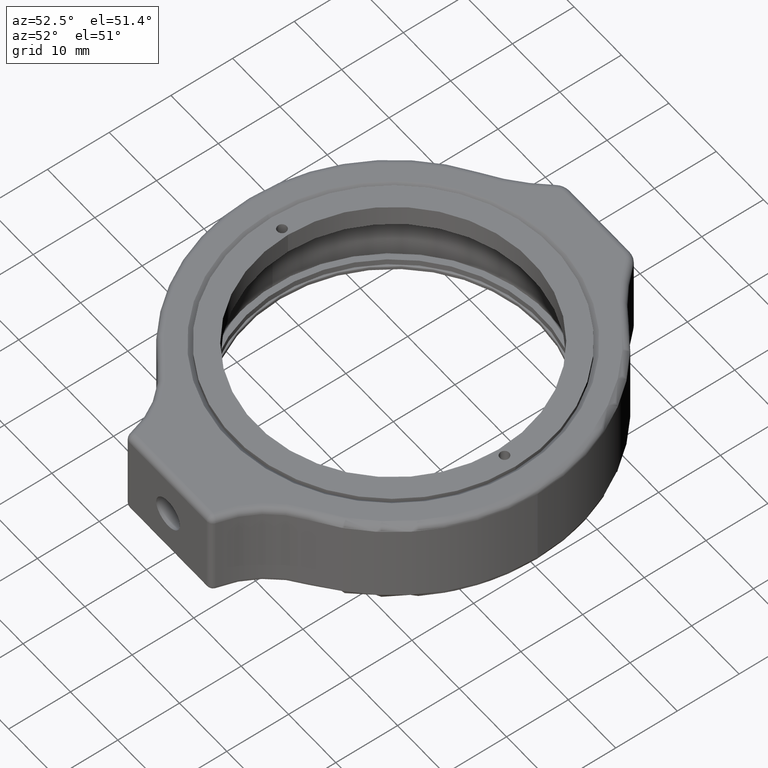
[diagram: clean part render]
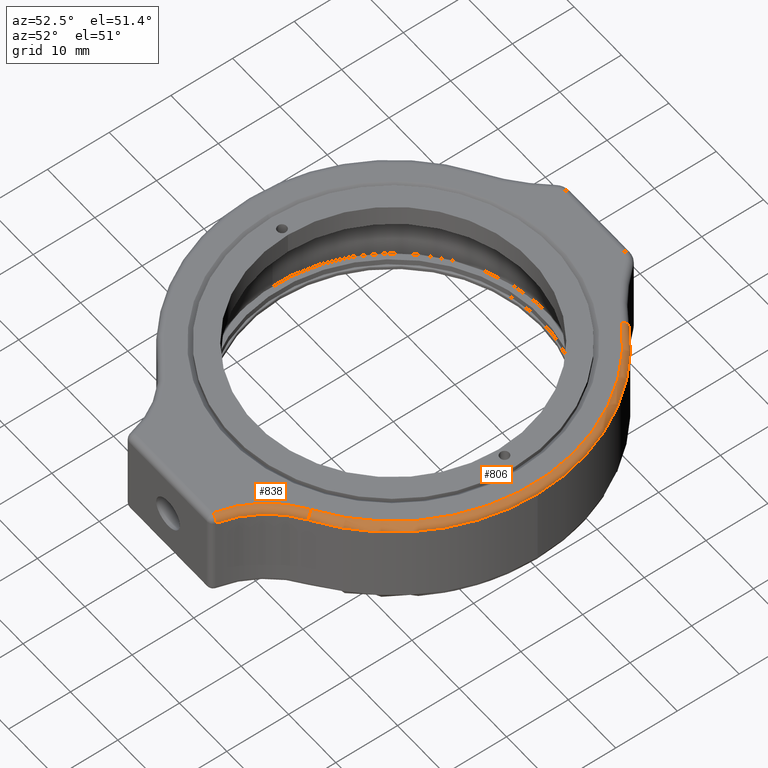
[diagram: same view with one multi-face feature highlighted, each face labeled with its STEP entity id]
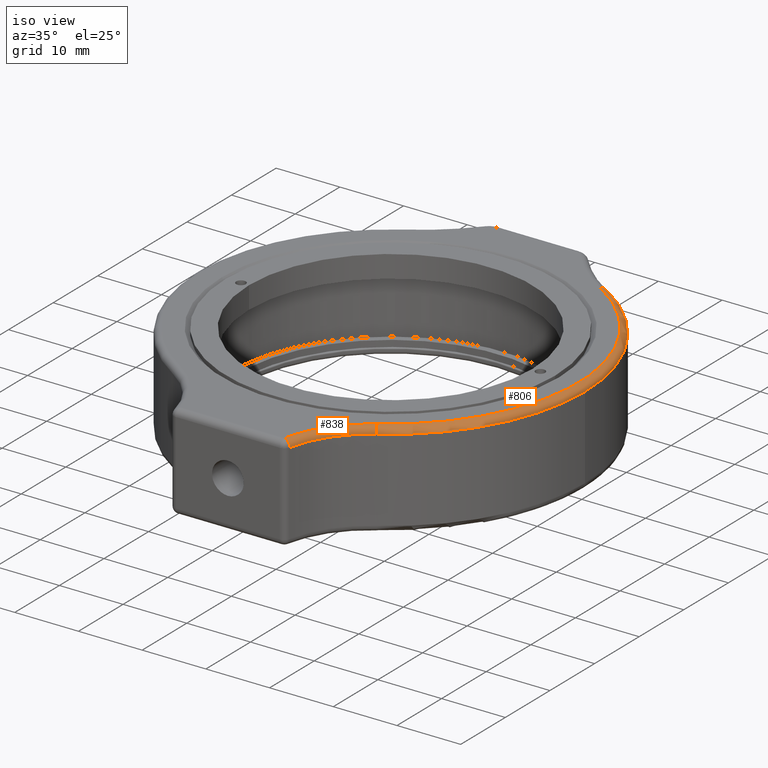
[diagram: same view with one multi-face feature highlighted, each face labeled with its STEP entity id]
A machine part, auxiliary view. The highlighted faces form ONE feature: a constant-radius fillet chain: 2 tangent blend faces with common blend radius 1 mm. The faces share edges in the B-rep.
A second angle (iso view) of the same feature is appended — it is thin or edge-on in the first view.
Their STEP definitions:
[1] entity #806 (Torus):
#46 = ORIENTED_EDGE ( 'NONE', *, *, #1982, .F. ) ;
#233 = CARTESIAN_POINT ( 'NONE',  ( 15.44927815531206500, -25.13105259394833600, -1.000000000000000000 ) ) ;
#235 = EDGE_CURVE ( 'NONE', #1274, #988, #1292, .T. ) ;
#253 = VERTEX_POINT ( 'NONE', #2094 ) ;
#254 = CARTESIAN_POINT ( 'NONE',  ( 0.0000000000000000000, 0.0000000000000000000, -1.000000000000000900 ) ) ;
#292 = FACE_OUTER_BOUND ( 'NONE', #2047, .T. ) ;
#358 = CARTESIAN_POINT ( 'NONE',  ( 30.50000000000000000, -1.693090112553364000E-014, -1.000000000000000900 ) ) ;
#411 = DIRECTION ( 'NONE',  ( -1.000000000000000000, 5.551115123125783700E-016, 0.0000000000000000000 ) ) ;
#434 = DIRECTION ( 'NONE',  ( 0.0000000000000000000, 0.0000000000000000000, -1.000000000000000000 ) ) ;
#450 = CIRCLE ( 'NONE', #1039, 30.50000000000000000 ) ;
#507 = CIRCLE ( 'NONE', #2208, 30.50000000000000000 ) ;
#509 = VERTEX_POINT ( 'NONE', #358 ) ;
#569 = DIRECTION ( 'NONE',  ( -0.8559209928427903300, 0.5171066176438011700, 0.0000000000000000000 ) ) ;
#756 = CARTESIAN_POINT ( 'NONE',  ( 0.0000000000000000000, 0.0000000000000000000, -1.000000000000000900 ) ) ;
#788 = ORIENTED_EDGE ( 'NONE', *, *, #2058, .F. ) ;
#806 = ADVANCED_FACE ( 'NONE', ( #292 ), #1275, .T. ) ;
#841 = VERTEX_POINT ( 'NONE', #2154 ) ;
#886 = ORIENTED_EDGE ( 'NONE', *, *, #235, .F. ) ;
#988 = VERTEX_POINT ( 'NONE', #1147 ) ;
#1039 = AXIS2_PLACEMENT_3D ( 'NONE', #254, #434, #411 ) ;
#1147 = CARTESIAN_POINT ( 'NONE',  ( 15.25464522049212100, 25.24966928886230400, 0.0000000000000000000 ) ) ;
#1206 = CARTESIAN_POINT ( 'NONE',  ( 0.0000000000000000000, 0.0000000000000000000, -1.000000000000000900 ) ) ;
#1252 = CARTESIAN_POINT ( 'NONE',  ( 0.0000000000000000000, 0.0000000000000000000, 0.0000000000000000000 ) ) ;
#1274 = VERTEX_POINT ( 'NONE', #1895 ) ;
#1275 = TOROIDAL_SURFACE ( 'NONE', #1642, 29.50000000000000000, 1.000000000000000000 ) ;
#1292 = CIRCLE ( 'NONE', #2143, 29.50000000000000000 ) ;
#1363 = EDGE_CURVE ( 'NONE', #509, #841, #450, .T. ) ;
#1372 = EDGE_CURVE ( 'NONE', #1274, #841, #1391, .T. ) ;
#1391 = CIRCLE ( 'NONE', #1844, 1.000000000000001100 ) ;
#1425 = DIRECTION ( 'NONE',  ( -0.0000000000000000000, -0.0000000000000000000, 1.000000000000000000 ) ) ;
#1427 = DIRECTION ( 'NONE',  ( -1.000000000000000000, 5.551115123125783700E-016, 0.0000000000000000000 ) ) ;
#1535 = CARTESIAN_POINT ( 'NONE',  ( 15.25464522049212100, 25.24966928886230400, -1.000000000000000000 ) ) ;
#1577 = DIRECTION ( 'NONE',  ( -1.000000000000000000, 1.443289932012703500E-015, 0.0000000000000000000 ) ) ;
#1586 = DIRECTION ( 'NONE',  ( 0.8519000879304528000, 0.5237043442478653800, 0.0000000000000000000 ) ) ;
#1610 = DIRECTION ( 'NONE',  ( 0.5237043442478656100, -0.8519000879304528000, 0.0000000000000000000 ) ) ;
#1642 = AXIS2_PLACEMENT_3D ( 'NONE', #756, #1754, #1427 ) ;
#1684 = DIRECTION ( 'NONE',  ( -1.000000000000000000, 5.551115123125783700E-016, 0.0000000000000000000 ) ) ;
#1693 = DIRECTION ( 'NONE',  ( 0.0000000000000000000, 0.0000000000000000000, -1.000000000000000000 ) ) ;
#1754 = DIRECTION ( 'NONE',  ( 0.0000000000000000000, 0.0000000000000000000, -1.000000000000000000 ) ) ;
#1844 = AXIS2_PLACEMENT_3D ( 'NONE', #233, #1586, #1610 ) ;
#1895 = CARTESIAN_POINT ( 'NONE',  ( 15.44927815531207000, -25.13105259394834700, -0.0000000000000000000 ) ) ;
#1982 = EDGE_CURVE ( 'NONE', #988, #253, #2083, .T. ) ;
#2047 = EDGE_LOOP ( 'NONE', ( #2204, #2189, #788, #46, #886 ) ) ;
#2049 = DIRECTION ( 'NONE',  ( 0.5171066176437993900, 0.8559209928427912200, 0.0000000000000000000 ) ) ;
#2058 = EDGE_CURVE ( 'NONE', #253, #509, #507, .T. ) ;
#2083 = CIRCLE ( 'NONE', #2172, 0.9999999999999987800 ) ;
#2094 = CARTESIAN_POINT ( 'NONE',  ( 15.77175183813591800, 26.10559028170507300, -1.000000000000000900 ) ) ;
#2143 = AXIS2_PLACEMENT_3D ( 'NONE', #1252, #1425, #1577 ) ;
#2154 = CARTESIAN_POINT ( 'NONE',  ( 15.97298249955993100, -25.98295268187880700, -1.000000000000000900 ) ) ;
#2172 = AXIS2_PLACEMENT_3D ( 'NONE', #1535, #569, #2049 ) ;
#2189 = ORIENTED_EDGE ( 'NONE', *, *, #1363, .F. ) ;
#2204 = ORIENTED_EDGE ( 'NONE', *, *, #1372, .T. ) ;
#2208 = AXIS2_PLACEMENT_3D ( 'NONE', #1206, #1693, #1684 ) ;
[2] entity #838 (Torus):
#10 = EDGE_CURVE ( 'NONE', #841, #1131, #665, .T. ) ;
#30 = AXIS2_PLACEMENT_3D ( 'NONE', #986, #1644, #802 ) ;
#233 = CARTESIAN_POINT ( 'NONE',  ( 15.44927815531206500, -25.13105259394833600, -1.000000000000000000 ) ) ;
#315 = AXIS2_PLACEMENT_3D ( 'NONE', #2222, #983, #500 ) ;
#447 = ORIENTED_EDGE ( 'NONE', *, *, #10, .F. ) ;
#463 = EDGE_CURVE ( 'NONE', #1286, #1274, #1599, .T. ) ;
#481 = ORIENTED_EDGE ( 'NONE', *, *, #981, .T. ) ;
#492 = DIRECTION ( 'NONE',  ( 0.2038408750522239500, 0.9790040335248592100, 0.0000000000000000000 ) ) ;
#500 = DIRECTION ( 'NONE',  ( -1.000000000000000000, 4.625929269271486900E-016, 0.0000000000000000000 ) ) ;
#665 = CIRCLE ( 'NONE', #315, 14.99999999999999500 ) ;
#698 = CARTESIAN_POINT ( 'NONE',  ( 9.143487160405019400, -35.70384087505222200, -1.000000000000000900 ) ) ;
#802 = DIRECTION ( 'NONE',  ( -1.000000000000000000, 4.336808689942019700E-016, 0.0000000000000000000 ) ) ;
#820 = DIRECTION ( 'NONE',  ( 0.9790040335248596500, -0.2038408750522221500, 0.0000000000000000000 ) ) ;
#838 = ADVANCED_FACE ( 'NONE', ( #1839 ), #889, .T. ) ;
#841 = VERTEX_POINT ( 'NONE', #2154 ) ;
#889 = TOROIDAL_SURFACE ( 'NONE', #1478, 15.99999999999999300, 1.000000000000000000 ) ;
#931 = CARTESIAN_POINT ( 'NONE',  ( 23.82854766327792400, -38.76145400083557000, -1.000000000000000900 ) ) ;
#981 = EDGE_CURVE ( 'NONE', #1286, #1131, #1868, .T. ) ;
#983 = DIRECTION ( 'NONE',  ( -0.0000000000000000000, -0.0000000000000000000, 1.000000000000000000 ) ) ;
#986 = CARTESIAN_POINT ( 'NONE',  ( 23.82854766327792400, -38.76145400083557000, -0.0000000000000000000 ) ) ;
#1131 = VERTEX_POINT ( 'NONE', #698 ) ;
#1274 = VERTEX_POINT ( 'NONE', #1895 ) ;
#1286 = VERTEX_POINT ( 'NONE', #2095 ) ;
#1372 = EDGE_CURVE ( 'NONE', #1274, #841, #1391, .T. ) ;
#1391 = CIRCLE ( 'NONE', #1844, 1.000000000000001100 ) ;
#1478 = AXIS2_PLACEMENT_3D ( 'NONE', #931, #1803, #2147 ) ;
#1574 = ORIENTED_EDGE ( 'NONE', *, *, #463, .F. ) ;
#1586 = DIRECTION ( 'NONE',  ( 0.8519000879304528000, 0.5237043442478653800, 0.0000000000000000000 ) ) ;
#1599 = CIRCLE ( 'NONE', #30, 15.99999999999999300 ) ;
#1610 = DIRECTION ( 'NONE',  ( 0.5237043442478656100, -0.8519000879304528000, 0.0000000000000000000 ) ) ;
#1644 = DIRECTION ( 'NONE',  ( 0.0000000000000000000, 0.0000000000000000000, -1.000000000000000000 ) ) ;
#1803 = DIRECTION ( 'NONE',  ( 0.0000000000000000000, 0.0000000000000000000, -1.000000000000000000 ) ) ;
#1830 = CARTESIAN_POINT ( 'NONE',  ( 8.164483126880172700, -35.50000000000000700, -1.000000000000000400 ) ) ;
#1839 = FACE_OUTER_BOUND ( 'NONE', #2236, .T. ) ;
#1844 = AXIS2_PLACEMENT_3D ( 'NONE', #233, #1586, #1610 ) ;
#1847 = ORIENTED_EDGE ( 'NONE', *, *, #1372, .F. ) ;
#1868 = CIRCLE ( 'NONE', #2188, 0.9999999999999988900 ) ;
#1895 = CARTESIAN_POINT ( 'NONE',  ( 15.44927815531207000, -25.13105259394834700, -0.0000000000000000000 ) ) ;
#2095 = CARTESIAN_POINT ( 'NONE',  ( 8.164483126880179900, -35.50000000000000700, -0.0000000000000000000 ) ) ;
#2147 = DIRECTION ( 'NONE',  ( -1.000000000000000000, 4.081702296416018000E-016, 0.0000000000000000000 ) ) ;
#2154 = CARTESIAN_POINT ( 'NONE',  ( 15.97298249955993100, -25.98295268187880700, -1.000000000000000900 ) ) ;
#2188 = AXIS2_PLACEMENT_3D ( 'NONE', #1830, #492, #820 ) ;
#2222 = CARTESIAN_POINT ( 'NONE',  ( 23.82854766327792400, -38.76145400083557000, -1.000000000000000900 ) ) ;
#2236 = EDGE_LOOP ( 'NONE', ( #481, #447, #1847, #1574 ) ) ;